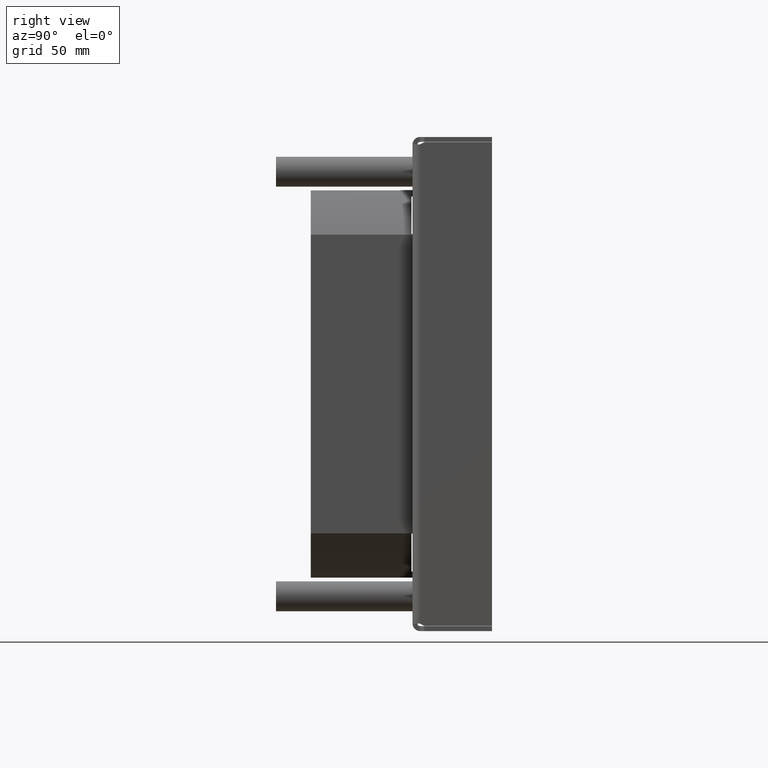
[diagram: clean part render]
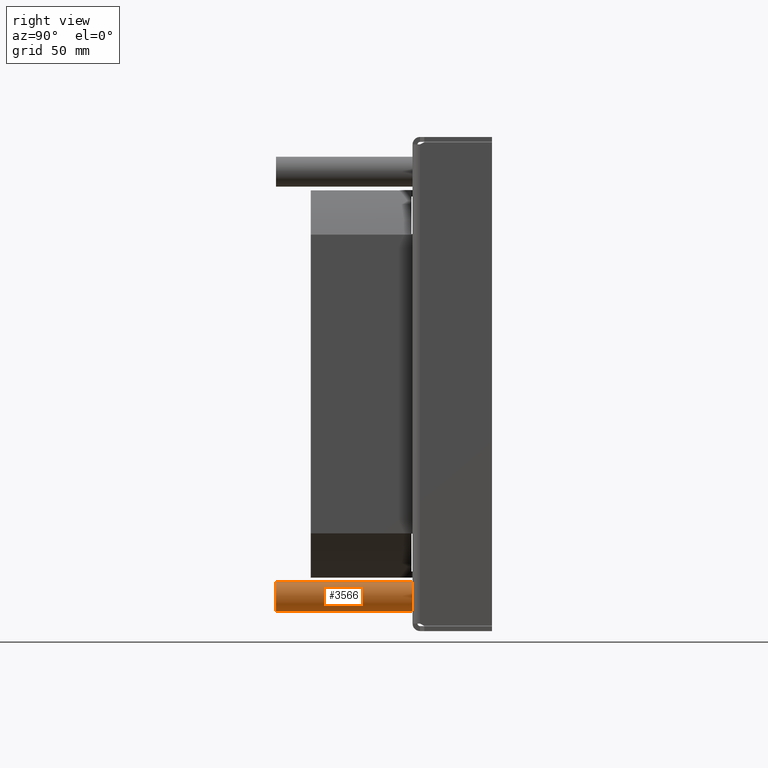
[diagram: same view with one face highlighted and labeled with its STEP entity id]
A machine part, right view. The second image highlights one B-rep face of the part: STEP entity #3566.
In plain terms, the highlighted cylindrical surface (edge-blend (fillet) strip) has radius 6 mm, axis along (0, -1, 0).
Its self-contained STEP definition (entity closure, byte-faithful):
#3317=CARTESIAN_POINT('',(0.E0,-4.973799150321E-14,1.065325243143E-14));
#3318=DIRECTION('',(0.E0,1.E0,0.E0));
#3319=DIRECTION('',(0.E0,0.E0,1.E0));
#3320=AXIS2_PLACEMENT_3D('',#3317,#3318,#3319);
#3333=DIRECTION('',(0.E0,-1.E0,0.E0));
#3334=VECTOR('',#3333,5.5E1);
#3335=CARTESIAN_POINT('',(0.E0,5.5E1,6.E0));
#3336=LINE('',#3335,#3334);
#3340=CARTESIAN_POINT('',(0.E0,5.5E1,0.E0));
#3341=DIRECTION('',(0.E0,1.E0,0.E0));
#3342=DIRECTION('',(0.E0,0.E0,1.E0));
#3343=AXIS2_PLACEMENT_3D('',#3340,#3341,#3342);
#3348=DIRECTION('',(0.E0,-1.E0,0.E0));
#3349=VECTOR('',#3348,5.5E1);
#3350=CARTESIAN_POINT('',(0.E0,5.5E1,-6.E0));
#3351=LINE('',#3350,#3349);
#3405=CARTESIAN_POINT('',(0.E0,5.5E1,6.E0));
#3406=CARTESIAN_POINT('',(0.E0,0.E0,6.E0));
#3407=VERTEX_POINT('',#3405);
#3408=VERTEX_POINT('',#3406);
#3421=CARTESIAN_POINT('',(0.E0,5.5E1,-6.E0));
#3422=CARTESIAN_POINT('',(0.E0,0.E0,-6.E0));
#3423=VERTEX_POINT('',#3421);
#3424=VERTEX_POINT('',#3422);
#3554=CARTESIAN_POINT('',(0.E0,6.09E1,0.E0));
#3555=DIRECTION('',(0.E0,-1.E0,0.E0));
#3556=DIRECTION('',(0.E0,0.E0,1.E0));
#3557=AXIS2_PLACEMENT_3D('',#3554,#3555,#3556);
#3558=CYLINDRICAL_SURFACE('',#3557,6.E0);
#3559=ORIENTED_EDGE('',*,*,#3544,.F.);
#3561=ORIENTED_EDGE('',*,*,#3560,.T.);
#3562=ORIENTED_EDGE('',*,*,#3547,.T.);
#3563=ORIENTED_EDGE('',*,*,#3530,.F.);
#3564=EDGE_LOOP('',(#3559,#3561,#3562,#3563));
#3565=FACE_OUTER_BOUND('',#3564,.F.);
#3321=CIRCLE('',#3320,6.E0);
#3344=CIRCLE('',#3343,6.E0);
#3530=EDGE_CURVE('',#3408,#3424,#3321,.T.);
#3544=EDGE_CURVE('',#3407,#3408,#3336,.T.);
#3547=EDGE_CURVE('',#3423,#3424,#3351,.T.);
#3560=EDGE_CURVE('',#3407,#3423,#3344,.T.);
#3566=ADVANCED_FACE('',(#3565),#3558,.T.);